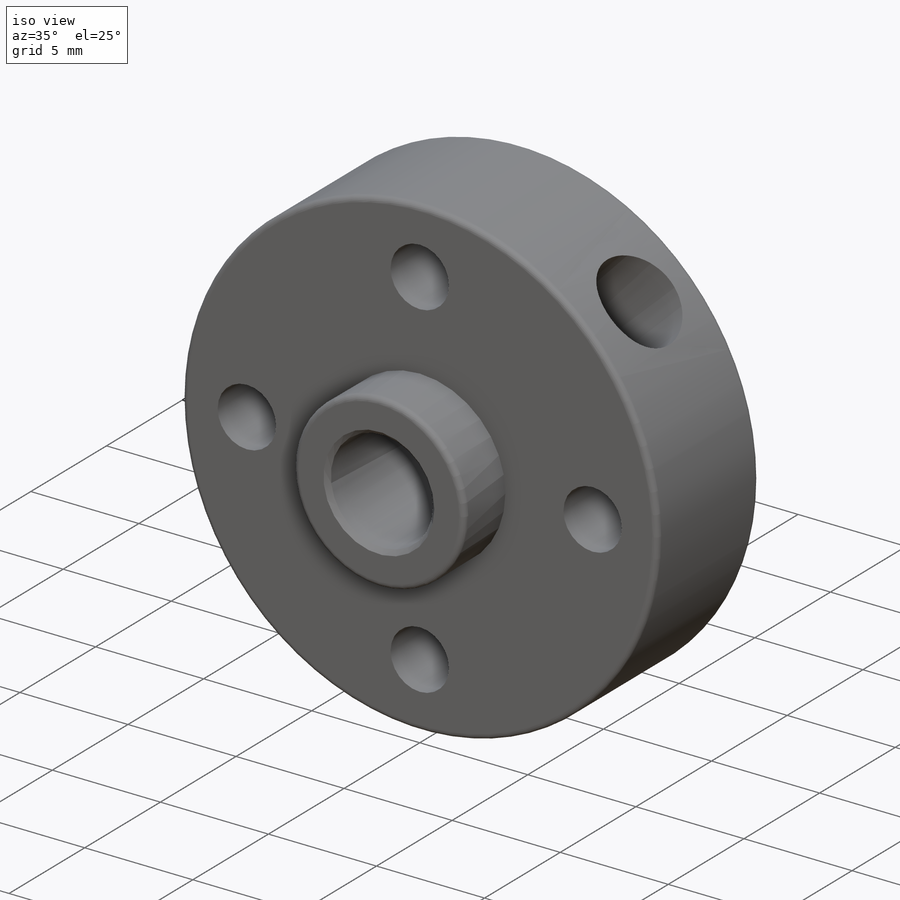
[diagram: iso view]
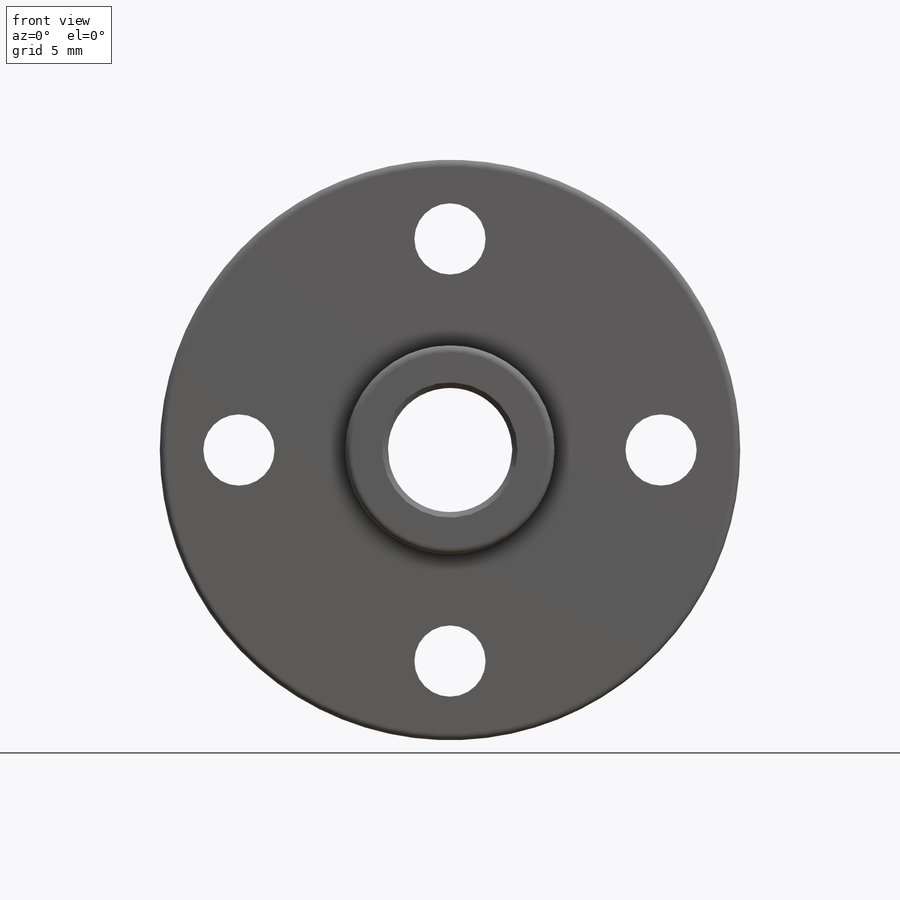
[diagram: front view]
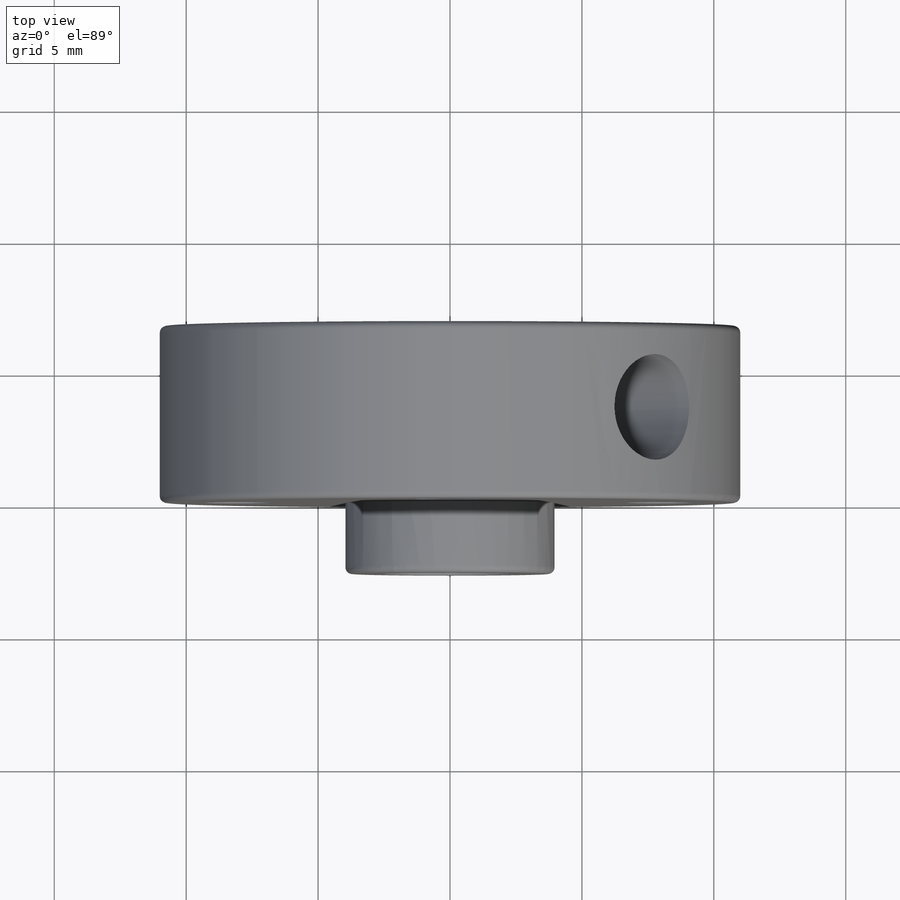
[diagram: top view]
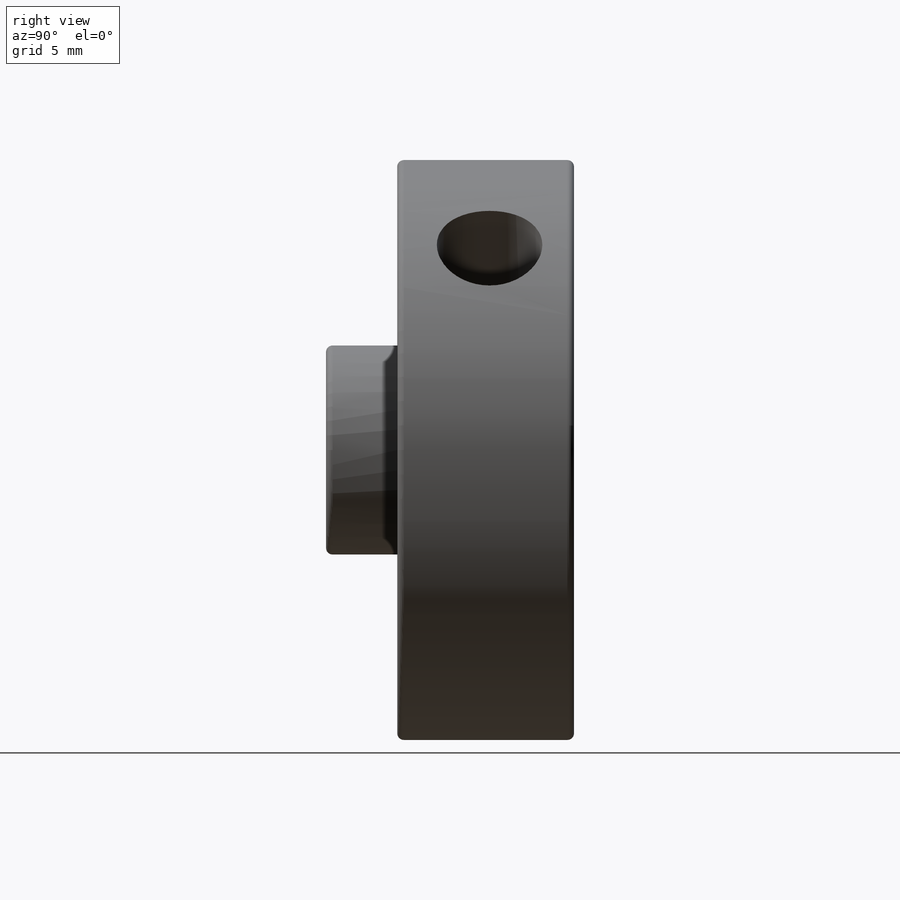
[diagram: right view]
SOLIDWORKS PART (.sldprt)
format: sldprt  version: not decoded by parser v0  size: 301,568 bytes
history: native  units: mm
features: sketch x6, thread x5, cut_extrude x3, extrude x2, material x1, plane x1, chamfer x1, fillet x1 (+13 scaffold rows collapsed)
feature tree (33):
  scaffold x13  (default folders/planes/origin — collapsed)
  material  "Material <not specified>"
  sketch  "Sketch1"  dims[D1=22.0mm]
  extrude  "Boss-Extrude1"  Depth=6.7mm
  sketch  "Sketch2"  dims[D1=7.925mm]
  extrude  "Boss-Extrude2"  Depth=2.7mm
  sketch  "Sketch3"  dims[D1=4.73mm]
  cut_extrude  "Cut-Extrude1"  [1 undecoded]
  sketch  "Sketch4"  dims[D1=16.0mm D2=2.7mm D3=2.7mm D4=2.7mm D5=2.7mm]
  cut_extrude  "Cut-Extrude2"  [1 undecoded]
  thread  "Cosmetic Thread1"  Diameter=3.5052mm  [1 undecoded]
  thread  "Cosmetic Thread2"  Diameter=3.5052mm  [1 undecoded]
  thread  "Cosmetic Thread3"  Diameter=3.5052mm  [1 undecoded]
  thread  "Cosmetic Thread4"  Diameter=3.5052mm  [1 undecoded]
  sketch  "Sketch5"
  plane  "Plane1"
  sketch  "Sketch6"  dims[D2=4.0mm D1=3.2mm]
  cut_extrude  "Cut-Extrude3"  [1 undecoded]
  thread  "Cosmetic Thread5"  Diameter=4.826mm  [1 undecoded]
  chamfer  "Chamfer1"  Distance=0.2mm Angle=45deg
  fillet  "Fillet1"  Radius=0.25mm
decode coverage: 14 of 18 modeling features carry decoded parameters
note: 8 parameter values undecoded
summary: no parameter record found for 3 features
note: suppression state not decoded; provenance and decode notes live in map.json
